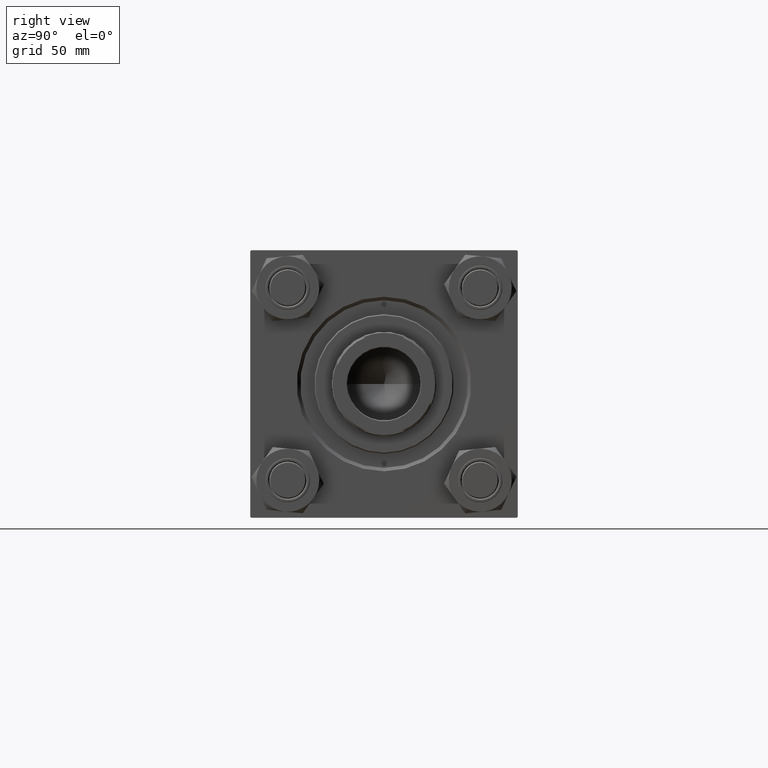
[diagram: clean part render]
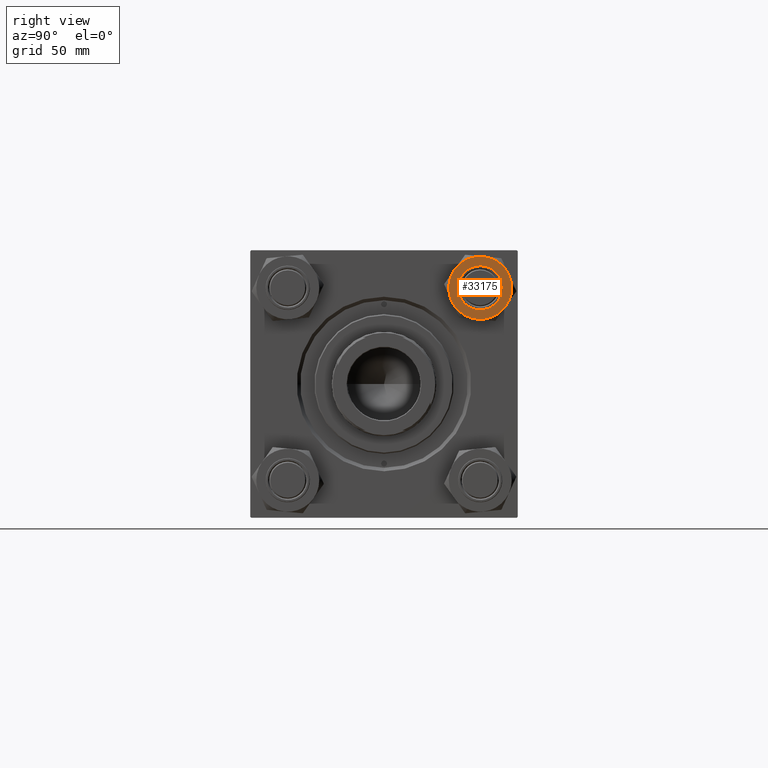
[diagram: same view with one face highlighted and labeled with its STEP entity id]
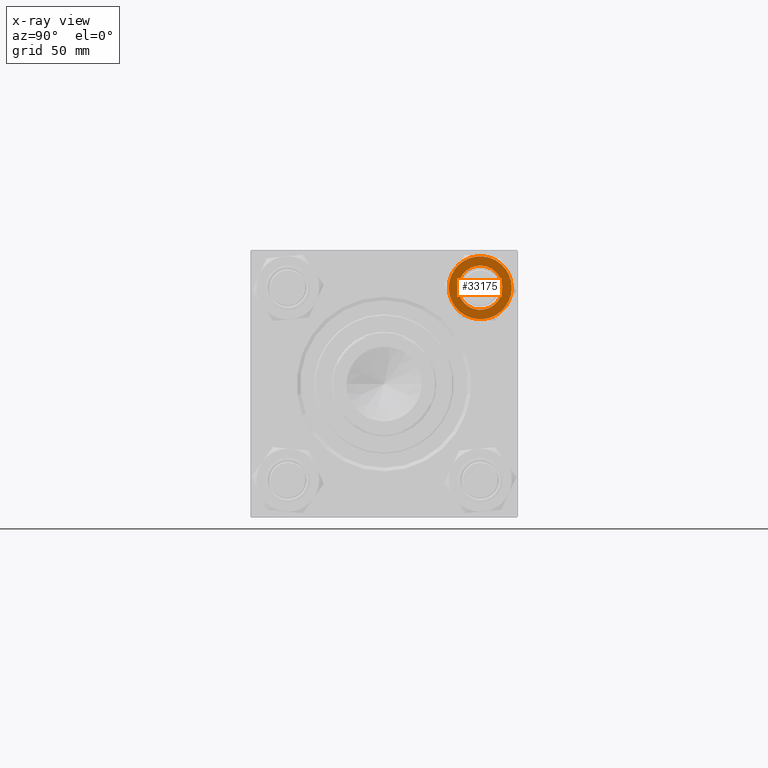
[diagram: x-ray of the same camera — body ghosted, the highlighted face saturated]
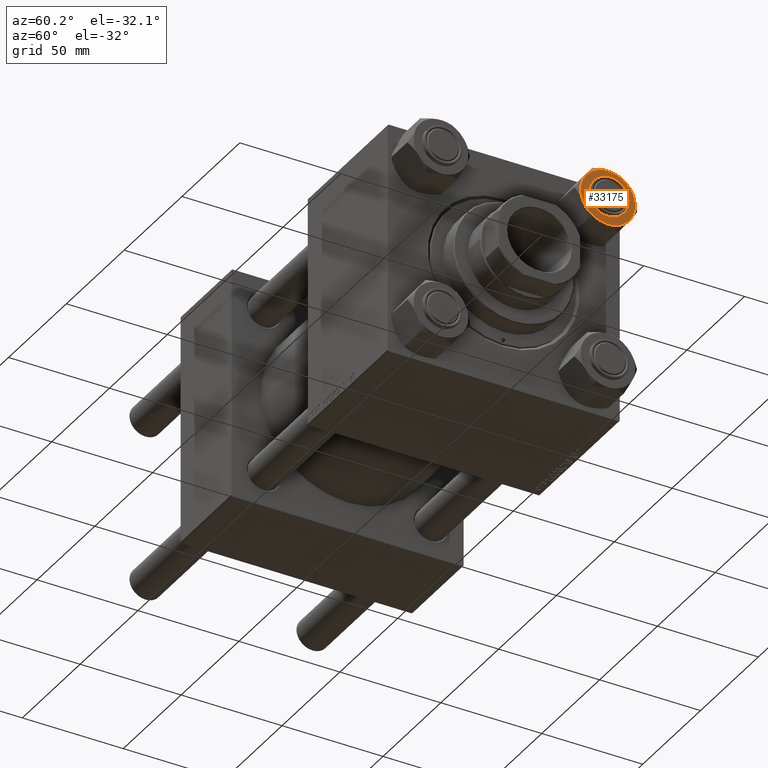
[diagram: same view with one face highlighted and labeled with its STEP entity id]
A machine part, right view. The second image highlights one B-rep face of the part: STEP entity #33175.
The next image is the same camera in x-ray: the body ghosted, the highlighted face saturated — about 0% of this face is hidden behind the body in this view.
A second angle (auxiliary view) of the same face is appended — the face is thin or edge-on in the first view.
In plain terms, the highlighted planar face has unit normal (-1, 0, -0).
Its self-contained STEP definition (entity closure, byte-faithful):
#769 = VERTEX_POINT ( 'NONE', #29791 ) ;
#831 = CARTESIAN_POINT ( 'NONE',  ( 11.71499999999999808, 6.763658403556471299, 0.000000000000000000 ) ) ;
#1013 = CARTESIAN_POINT ( 'NONE',  ( 11.71500000000000341, -6.763658403556461529, 0.000000000000000000 ) ) ;
#1715 = VERTEX_POINT ( 'NONE', #33300 ) ;
#2125 = AXIS2_PLACEMENT_3D ( 'NONE', #19326, #15498, #27453 ) ;
#3021 = EDGE_CURVE ( 'NONE', #45651, #39733, #24279, .T. ) ;
#4896 = CIRCLE ( 'NONE', #11398, 13.52731680711293549 ) ;
#6400 = EDGE_CURVE ( 'NONE', #41964, #45651, #4896, .T. ) ;
#8291 = CARTESIAN_POINT ( 'NONE',  ( -4.506943796211480446E-15, 13.52731680711293905, 0.000000000000000000 ) ) ;
#9047 = DIRECTION ( 'NONE',  ( 1.000000000000000000, 0.000000000000000000, 0.000000000000000000 ) ) ;
#9050 = DIRECTION ( 'NONE',  ( 0.000000000000000000, -0.000000000000000000, -1.000000000000000000 ) ) ;
#9315 = EDGE_CURVE ( 'NONE', #39733, #769, #26121, .T. ) ;
#10119 = EDGE_CURVE ( 'NONE', #14841, #41964, #18829, .T. ) ;
#11398 = AXIS2_PLACEMENT_3D ( 'NONE', #28955, #40898, #44484 ) ;
#11892 = AXIS2_PLACEMENT_3D ( 'NONE', #49014, #9050, #24583 ) ;
#12213 = EDGE_LOOP ( 'NONE', ( #40393, #40634 ) ) ;
#12403 = DIRECTION ( 'NONE',  ( -1.000000000000000000, 0.000000000000000000, -0.000000000000000000 ) ) ;
#12656 = PLANE ( 'NONE',  #16449 ) ;
#12819 = CARTESIAN_POINT ( 'NONE',  ( 13.52731680711293727, 0.000000000000000000, 0.000000000000000000 ) ) ;
#12869 = DIRECTION ( 'NONE',  ( 0.000000000000000000, 0.000000000000000000, 1.000000000000000000 ) ) ;
#13977 = CARTESIAN_POINT ( 'NONE',  ( 0.000000000000000000, 0.000000000000000000, 0.000000000000000000 ) ) ;
#14342 = CIRCLE ( 'NONE', #2125, 13.52731680711293549 ) ;
#14841 = VERTEX_POINT ( 'NONE', #831 ) ;
#15498 = DIRECTION ( 'NONE',  ( 0.000000000000000000, -0.000000000000000000, -1.000000000000000000 ) ) ;
#16449 = AXIS2_PLACEMENT_3D ( 'NONE', #31740, #39870, #12403 ) ;
#16879 = CARTESIAN_POINT ( 'NONE',  ( 7.511572993685796537E-15, -13.52731680711293372, 0.000000000000000000 ) ) ;
#18478 = CARTESIAN_POINT ( 'NONE',  ( 0.000000000000000000, 0.000000000000000000, 0.000000000000000000 ) ) ;
#18829 = CIRCLE ( 'NONE', #47278, 13.52731680711293549 ) ;
#19254 = VERTEX_POINT ( 'NONE', #8291 ) ;
#19326 = CARTESIAN_POINT ( 'NONE',  ( 0.000000000000000000, 0.000000000000000000, 0.000000000000000000 ) ) ;
#20058 = FACE_BOUND ( 'NONE', #12213, .T. ) ;
#20637 = DIRECTION ( 'NONE',  ( -1.000000000000000000, 0.000000000000000000, 0.000000000000000000 ) ) ;
#21603 = ORIENTED_EDGE ( 'NONE', *, *, #9315, .F. ) ;
#22113 = ORIENTED_EDGE ( 'NONE', *, *, #3021, .F. ) ;
#22679 = AXIS2_PLACEMENT_3D ( 'NONE', #36639, #36394, #20637 ) ;
#24279 = CIRCLE ( 'NONE', #22679, 13.52731680711293549 ) ;
#24475 = DIRECTION ( 'NONE',  ( 0.000000000000000000, -0.000000000000000000, -1.000000000000000000 ) ) ;
#24583 = DIRECTION ( 'NONE',  ( -1.000000000000000000, 0.000000000000000000, 0.000000000000000000 ) ) ;
#25084 = CARTESIAN_POINT ( 'NONE',  ( 0.000000000000000000, 0.000000000000000000, 0.000000000000000000 ) ) ;
#25420 = CARTESIAN_POINT ( 'NONE',  ( 9.500000000000000000, 1.163414459189985485E-15, 0.000000000000000000 ) ) ;
#25529 = CARTESIAN_POINT ( 'NONE',  ( 0.000000000000000000, 0.000000000000000000, 0.000000000000000000 ) ) ;
#25828 = ORIENTED_EDGE ( 'NONE', *, *, #6400, .F. ) ;
#26103 = EDGE_CURVE ( 'NONE', #46862, #45015, #50121, .T. ) ;
#26121 = CIRCLE ( 'NONE', #30194, 13.52731680711293549 ) ;
#27453 = DIRECTION ( 'NONE',  ( -1.000000000000000000, 0.000000000000000000, 0.000000000000000000 ) ) ;
#27795 = DIRECTION ( 'NONE',  ( -1.000000000000000000, 0.000000000000000000, 0.000000000000000000 ) ) ;
#28833 = AXIS2_PLACEMENT_3D ( 'NONE', #25084, #12869, #9047 ) ;
#28955 = CARTESIAN_POINT ( 'NONE',  ( 0.000000000000000000, 0.000000000000000000, 0.000000000000000000 ) ) ;
#29791 = CARTESIAN_POINT ( 'NONE',  ( -11.71499999999999808, -6.763658403556473964, 0.000000000000000000 ) ) ;
#30181 = DIRECTION ( 'NONE',  ( 0.000000000000000000, -0.000000000000000000, -1.000000000000000000 ) ) ;
#30194 = AXIS2_PLACEMENT_3D ( 'NONE', #43823, #24475, #27795 ) ;
#30250 = DIRECTION ( 'NONE',  ( 0.000000000000000000, 0.000000000000000000, 1.000000000000000000 ) ) ;
#30433 = AXIS2_PLACEMENT_3D ( 'NONE', #13977, #30250, #40692 ) ;
#31020 = ORIENTED_EDGE ( 'NONE', *, *, #46591, .F. ) ;
#31740 = CARTESIAN_POINT ( 'NONE',  ( 0.000000000000000000, 0.000000000000000000, 0.000000000000000000 ) ) ;
#32916 = DIRECTION ( 'NONE',  ( 1.000000000000000000, 0.000000000000000000, 0.000000000000000000 ) ) ;
#33175 = ADVANCED_FACE ( 'NONE', ( #20058, #47277 ), #12656, .F. ) ;
#33300 = CARTESIAN_POINT ( 'NONE',  ( -11.71500000000000341, 6.763658403556464194, 0.000000000000000000 ) ) ;
#36394 = DIRECTION ( 'NONE',  ( 0.000000000000000000, -0.000000000000000000, -1.000000000000000000 ) ) ;
#36487 = DIRECTION ( 'NONE',  ( 0.000000000000000000, 0.000000000000000000, 1.000000000000000000 ) ) ;
#36639 = CARTESIAN_POINT ( 'NONE',  ( 0.000000000000000000, 0.000000000000000000, 0.000000000000000000 ) ) ;
#37641 = ORIENTED_EDGE ( 'NONE', *, *, #10119, .F. ) ;
#38145 = ORIENTED_EDGE ( 'NONE', *, *, #47373, .F. ) ;
#38539 = EDGE_CURVE ( 'NONE', #45015, #46862, #41840, .T. ) ;
#39733 = VERTEX_POINT ( 'NONE', #16879 ) ;
#39870 = DIRECTION ( 'NONE',  ( 0.000000000000000000, 0.000000000000000000, -1.000000000000000000 ) ) ;
#39936 = EDGE_LOOP ( 'NONE', ( #38145, #31020, #21603, #22113, #25828, #37641, #46441 ) ) ;
#40393 = ORIENTED_EDGE ( 'NONE', *, *, #26103, .F. ) ;
#40634 = ORIENTED_EDGE ( 'NONE', *, *, #38539, .F. ) ;
#40692 = DIRECTION ( 'NONE',  ( 1.000000000000000000, 0.000000000000000000, 0.000000000000000000 ) ) ;
#40898 = DIRECTION ( 'NONE',  ( 0.000000000000000000, -0.000000000000000000, -1.000000000000000000 ) ) ;
#41840 = CIRCLE ( 'NONE', #28833, 9.500000000000000000 ) ;
#41895 = DIRECTION ( 'NONE',  ( -1.000000000000000000, 0.000000000000000000, 0.000000000000000000 ) ) ;
#41964 = VERTEX_POINT ( 'NONE', #12819 ) ;
#42511 = EDGE_CURVE ( 'NONE', #14841, #19254, #45073, .T. ) ;
#43823 = CARTESIAN_POINT ( 'NONE',  ( 0.000000000000000000, 0.000000000000000000, 0.000000000000000000 ) ) ;
#44484 = DIRECTION ( 'NONE',  ( -1.000000000000000000, 0.000000000000000000, 0.000000000000000000 ) ) ;
#45015 = VERTEX_POINT ( 'NONE', #25420 ) ;
#45073 = CIRCLE ( 'NONE', #30433, 13.52731680711293372 ) ;
#45218 = CIRCLE ( 'NONE', #11892, 13.52731680711293549 ) ;
#45651 = VERTEX_POINT ( 'NONE', #1013 ) ;
#46000 = CARTESIAN_POINT ( 'NONE',  ( -9.500000000000000000, 0.000000000000000000, 0.000000000000000000 ) ) ;
#46441 = ORIENTED_EDGE ( 'NONE', *, *, #42511, .T. ) ;
#46591 = EDGE_CURVE ( 'NONE', #769, #1715, #14342, .T. ) ;
#46862 = VERTEX_POINT ( 'NONE', #46000 ) ;
#47277 = FACE_OUTER_BOUND ( 'NONE', #39936, .T. ) ;
#47278 = AXIS2_PLACEMENT_3D ( 'NONE', #18478, #30181, #41895 ) ;
#47373 = EDGE_CURVE ( 'NONE', #1715, #19254, #45218, .T. ) ;
#48479 = AXIS2_PLACEMENT_3D ( 'NONE', #25529, #36487, #32916 ) ;
#49014 = CARTESIAN_POINT ( 'NONE',  ( 0.000000000000000000, 0.000000000000000000, 0.000000000000000000 ) ) ;
#50121 = CIRCLE ( 'NONE', #48479, 9.500000000000000000 ) ;